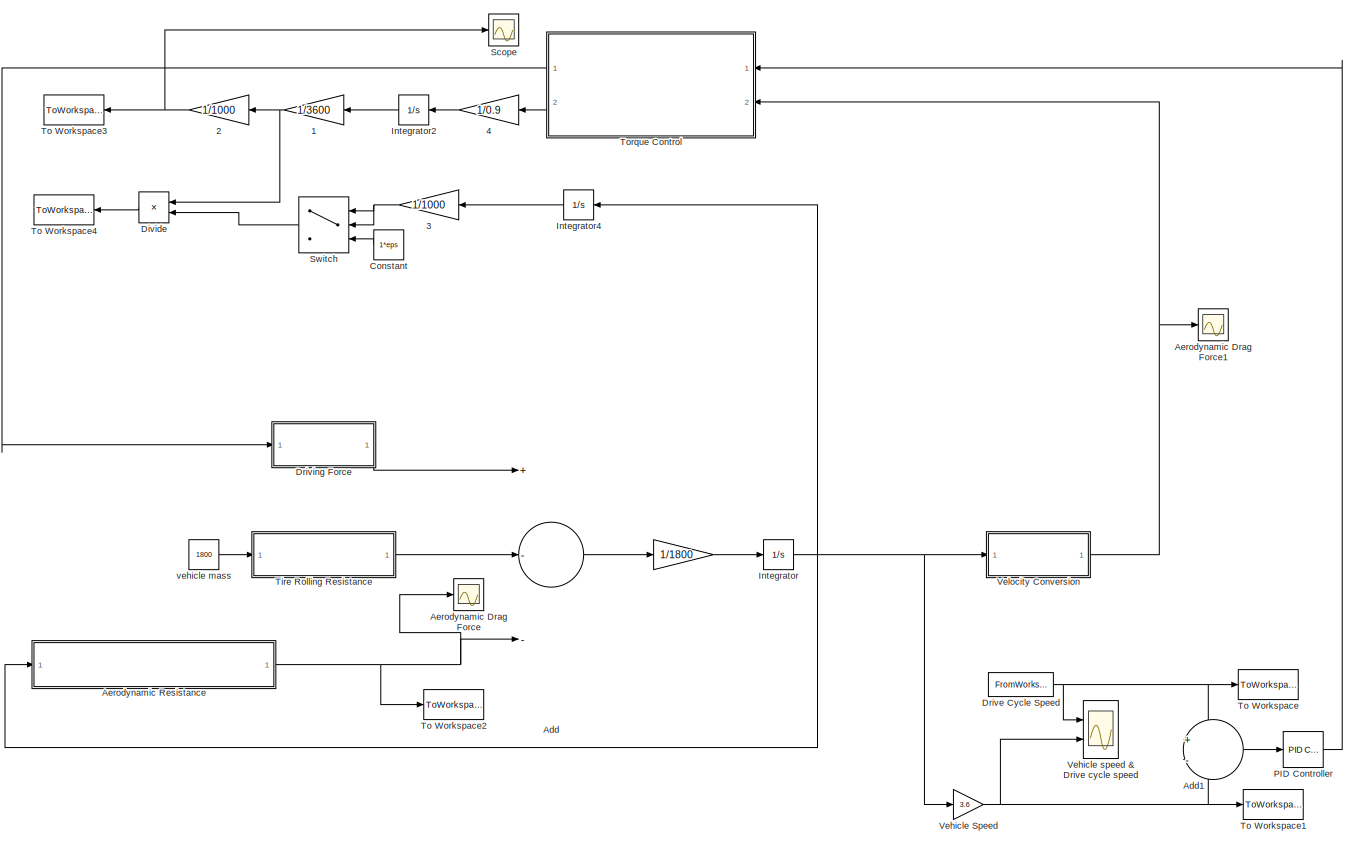
[diagram: root canvas - part 1/1, most of the canvas]
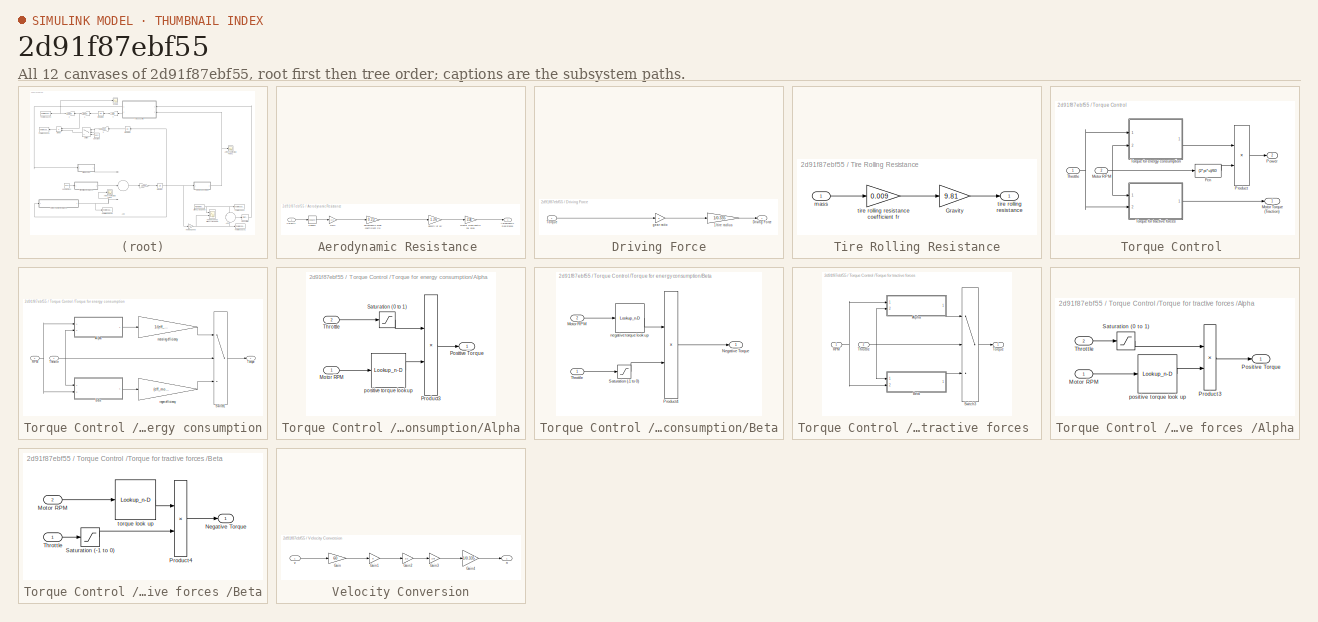
[diagram: thumbnail index - all 12 canvases of the model, root first then tree order]
MODEL slx_2d91f87ebf55
KIND model
CONFIG AbsTol = auto
CONFIG EnableMultiTasking = off
CONFIG FixedStep = 1
CONFIG MaxStep = auto
CONFIG MinStep = auto
CONFIG RelTol = 1e-3
CONFIG SampleTimeConstraint = Unconstrained
CONFIG Solver = FixedStepAuto
CONFIG SolverName = FixedStepAuto
CONFIG StartTime = 1
CONFIG StopTime = 600
BLOCK [Gain]  
  Gain = 1/1800
  OutDataTypeStr = Inherit: Inherit via internal rule
  ParamDataTypeStr = Inherit: Inherit via internal rule
  SaturateOnIntegerOverflow = off
BLOCK [Gain]  1
  Gain = 1/3600
  OutDataTypeStr = Inherit: Inherit via internal rule
  ParamDataTypeStr = Inherit: Inherit via internal rule
  SaturateOnIntegerOverflow = off
BLOCK [Gain]  2
  Gain = 1/1000
  OutDataTypeStr = Inherit: Inherit via internal rule
  ParamDataTypeStr = Inherit: Inherit via internal rule
  SaturateOnIntegerOverflow = off
BLOCK [Gain]  3
  Gain = 1/1000
  OutDataTypeStr = Inherit: Inherit via internal rule
  ParamDataTypeStr = Inherit: Inherit via internal rule
  SaturateOnIntegerOverflow = off
BLOCK [Gain]  4
  Gain = 1/0.9
  OutDataTypeStr = Inherit: Inherit via internal rule
  ParamDataTypeStr = Inherit: Inherit via internal rule
  SaturateOnIntegerOverflow = off
BLOCK [Sum] Add
  InputSameDT = off
  Inputs = +--
  OutDataTypeStr = Inherit: Inherit via internal rule
  Ports = [3, 1]
  SaturateOnIntegerOverflow = off
BLOCK [Sum] Add1
  IconShape = round
  InputSameDT = off
  Inputs = +-
  OutDataTypeStr = Inherit: Inherit via internal rule
  Ports = [2, 1]
  SaturateOnIntegerOverflow = off
BLOCK [Scope] Aerodynamic Drag Force
  Floating = off
  NumInputPorts = 1
  Ports = [1]
  ScopeSpecificationString = Simulink.scopes.TimeScopeBlockCfg('CurrentConfiguration', extmgr.ConfigurationSet(extmgr.Configuration('Core','General UI',true),extmgr.Configuration('Core','Source UI',true),extmgr.Configuration('Sources','WiredSimulink',true,'DataLoggingVariableName','ScopeData3'),extmgr.Configuration('Visuals','Time Domain',true,'SerializedDisplays',{struct('MinYLimReal','-125.99156','MaxYLimReal','1133.92408',...<+1429ch>
BLOCK [Scope] Aerodynamic Drag Force1
  Floating = off
  NumInputPorts = 1
  Ports = [1]
  ScopeSpecificationString = Simulink.scopes.TimeScopeBlockCfg('CurrentConfiguration', extmgr.ConfigurationSet(extmgr.Configuration('Core','General UI',true),extmgr.Configuration('Core','Source UI',true),extmgr.Configuration('Sources','WiredSimulink',true,'DataLoggingVariableName','ScopeData2'),extmgr.Configuration('Visuals','Time Domain',true,'SerializedDisplays',{struct('MinYLimReal','-4737.4046','MaxYLimReal','14341.2755',...<+1427ch>
BLOCK [SubSystem] Aerodynamic Resistance 
  Ports = [1, 1]
  RequestExecContextInheritance = off
BLOCK [Outport] Aerodynamic Resistance /Aerodynamic Resistance
  IconDisplay = Port number
BLOCK [Gain] Aerodynamic Resistance /Frontal cross-sectional area
  Gain = 2.34
  OutDataTypeStr = Inherit: Inherit via internal rule
  ParamDataTypeStr = Inherit: Inherit via internal rule
  SaturateOnIntegerOverflow = off
BLOCK [Gain] Aerodynamic Resistance /Gain
  Gain = 1/2
  OutDataTypeStr = Inherit: Inherit via internal rule
  ParamDataTypeStr = Inherit: Inherit via internal rule
  SaturateOnIntegerOverflow = off
BLOCK [Math] Aerodynamic Resistance /Square
  Operator = square
  Ports = [1, 1]
BLOCK [Inport] Aerodynamic Resistance /Velocity
  IconDisplay = Port number
BLOCK [Gain] Aerodynamic Resistance /aerodynamic drag coefficient Cd
  Gain = 0.23
  OutDataTypeStr = Inherit: Inherit via internal rule
  ParamDataTypeStr = Inherit: Inherit via internal rule
  SaturateOnIntegerOverflow = off
BLOCK [Gain] Aerodynamic Resistance /density of air
  Gain = 1.26
  OutDataTypeStr = Inherit: Inherit via internal rule
  ParamDataTypeStr = Inherit: Inherit via internal rule
  SaturateOnIntegerOverflow = off
BLOCK [Constant] Constant
  Value = 1*eps
BLOCK [Product] Divide
  InputSameDT = off
  Inputs = */
  OutDataTypeStr = Inherit: Inherit via internal rule
  Ports = [2, 1]
  RndMeth = Floor
  SaturateOnIntegerOverflow = off
BLOCK [FromWorkspace] Drive Cycle Speed 
  SampleTime = 0
  VariableName = us06_ts
  ZeroCross = on
BLOCK [SubSystem] Driving Force
  Ports = [1, 1]
  RequestExecContextInheritance = off
BLOCK [Gain] Driving Force/1//tire radius
  Gain = 1/0.335
  OutDataTypeStr = Inherit: Inherit via internal rule
  ParamDataTypeStr = Inherit: Inherit via internal rule
  SaturateOnIntegerOverflow = off
BLOCK [Outport] Driving Force/Driving Force
  IconDisplay = Port number
BLOCK [Inport] Driving Force/Torque
  IconDisplay = Port number
BLOCK [Gain] Driving Force/gear ratio
  Gain = 8
  OutDataTypeStr = Inherit: Inherit via internal rule
  ParamDataTypeStr = Inherit: Inherit via internal rule
  SaturateOnIntegerOverflow = off
BLOCK [Integrator] Integrator
  Ports = [1, 1]
BLOCK [Integrator] Integrator2
  Ports = [1, 1]
BLOCK [Integrator] Integrator4
  Ports = [1, 1]
BLOCK [Reference] PID Controller  REF=simulink/Continuous/PID Controller
  Ports = [1, 1]
  SourceBlock = simulink/Continuous/PID Controller
  SourceProductBaseCode = SL
  SourceProductName = Simulink
  SourceType = PID 1dof
BLOCK [Scope] Scope
  Floating = off
  NumInputPorts = 1
  Ports = [1]
  ScopeSpecificationString = Simulink.scopes.TimeScopeBlockCfg('CurrentConfiguration', extmgr.ConfigurationSet(extmgr.Configuration('Core','General UI',true),extmgr.Configuration('Core','Source UI',true),extmgr.Configuration('Sources','WiredSimulink',true,'DataLoggingVariableName','ScopeData1'),extmgr.Configuration('Visuals','Time Domain',true,'SerializedDisplays',{struct('MinYLimReal','-383.69254','MaxYLimReal','3452.52688',...<+1379ch>
BLOCK [Switch] Switch
  Criteria = u2 > Threshold
  InputSameDT = off
  SaturateOnIntegerOverflow = off
BLOCK [SubSystem] Tire Rolling Resistance
  Ports = [1, 1]
  RequestExecContextInheritance = off
BLOCK [Gain] Tire Rolling Resistance/Gravity
  Gain = 9.81
  OutDataTypeStr = Inherit: Inherit via internal rule
  ParamDataTypeStr = Inherit: Inherit via internal rule
  SaturateOnIntegerOverflow = off
BLOCK [Inport] Tire Rolling Resistance/mass
  IconDisplay = Port number
BLOCK [Outport] Tire Rolling Resistance/tire rolling resistance
  IconDisplay = Port number
BLOCK [Gain] Tire Rolling Resistance/tire rolling resistance coefficient fr
  Gain = 0.009
  OutDataTypeStr = Inherit: Inherit via internal rule
  ParamDataTypeStr = Inherit: Inherit via internal rule
  SaturateOnIntegerOverflow = off
BLOCK [ToWorkspace] To Workspace
  FixptAsFi = on
  MaxDataPoints = inf
  Ports = [1]
  SampleTime = -1
  VariableName = Drivecycle
BLOCK [ToWorkspace] To Workspace1
  FixptAsFi = on
  MaxDataPoints = inf
  Ports = [1]
  SampleTime = -1
  VariableName = Vehicle
BLOCK [ToWorkspace] To Workspace2
  FixptAsFi = on
  MaxDataPoints = inf
  Ports = [1]
  SampleTime = -1
  VariableName = Aero
BLOCK [ToWorkspace] To Workspace3
  FixptAsFi = on
  MaxDataPoints = inf
  Ports = [1]
  SampleTime = -1
  VariableName = e_kWh
BLOCK [ToWorkspace] To Workspace4
  FixptAsFi = on
  MaxDataPoints = inf
  Ports = [1]
  SampleTime = -1
  VariableName = e_kWh_km
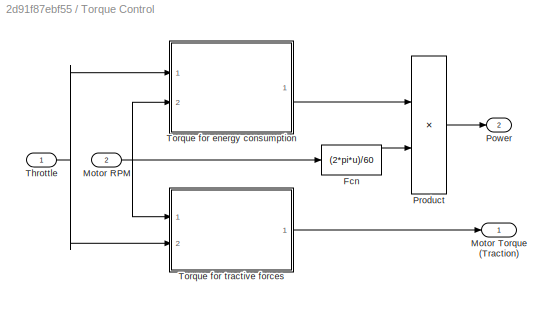
BLOCK [SubSystem] Torque Control 
  Ports = [2, 2]
  RequestExecContextInheritance = off
BLOCK [Fcn] Torque Control /Fcn
  Expr = (2*pi*u)/60
BLOCK [Inport] Torque Control /Motor RPM
  IconDisplay = Port number
  Port = 2
BLOCK [Outport] Torque Control /Motor Torque (Traction) 
  IconDisplay = Port number
  VectorParamsAs1DForOutWhenUnconnected = on
BLOCK [Outport] Torque Control /Power
  IconDisplay = Port number
  Port = 2
  VectorParamsAs1DForOutWhenUnconnected = on
BLOCK [Product] Torque Control /Product
  InputSameDT = off
  OutDataTypeStr = Inherit: Inherit via internal rule
  Ports = [2, 1]
  RndMeth = Floor
  SaturateOnIntegerOverflow = off
BLOCK [Inport] Torque Control /Throttle 
  IconDisplay = Port number
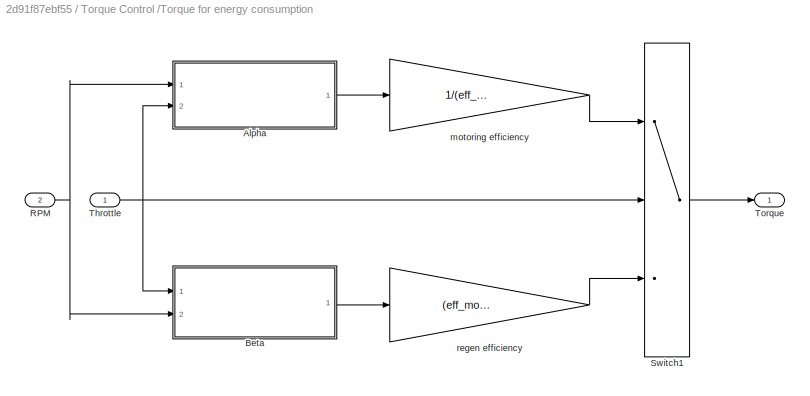
BLOCK [SubSystem] Torque Control /Torque for energy consumption
  Ports = [2, 1]
  RequestExecContextInheritance = off
BLOCK [SubSystem] Torque Control /Torque for energy consumption/Alpha
  Ports = [2, 1]
  RequestExecContextInheritance = off
BLOCK [Inport] Torque Control /Torque for energy consumption/Alpha/Motor RPM
  IconDisplay = Port number
BLOCK [Outport] Torque Control /Torque for energy consumption/Alpha/Positive Torque
  IconDisplay = Port number
  VectorParamsAs1DForOutWhenUnconnected = on
BLOCK [Product] Torque Control /Torque for energy consumption/Alpha/Product3
  InputSameDT = off
  OutDataTypeStr = Inherit: Inherit via internal rule
  Ports = [2, 1]
  SaturateOnIntegerOverflow = off
BLOCK [Saturate] Torque Control /Torque for energy consumption/Alpha/Saturation (0 to 1)
  InputPortMap = u0
  LowerLimit = 0
  Ports = [1, 1]
  UpperLimit = 1
BLOCK [Inport] Torque Control /Torque for energy consumption/Alpha/Throttle
  IconDisplay = Port number
  Port = 2
BLOCK [Lookup_n-D] Torque Control /Torque for energy consumption/Alpha/positive torque look up 
  BreakpointsForDimension1 = EM_RPM
  BreakpointsForDimension2 = alpha
  InternalRulePriority = Speed
  NumberOfTableDimensions = 1
  Ports = [1, 1]
  RndMeth = Simplest
  Table = EM_torque_Nm
BLOCK [SubSystem] Torque Control /Torque for energy consumption/Beta
  Ports = [2, 1]
  RequestExecContextInheritance = off
BLOCK [Inport] Torque Control /Torque for energy consumption/Beta/Motor RPM
  IconDisplay = Port number
  Port = 2
BLOCK [Outport] Torque Control /Torque for energy consumption/Beta/Negative Torque 
  IconDisplay = Port number
  VectorParamsAs1DForOutWhenUnconnected = on
BLOCK [Product] Torque Control /Torque for energy consumption/Beta/Product4
  InputSameDT = off
  OutDataTypeStr = Inherit: Inherit via internal rule
  Ports = [2, 1]
  SaturateOnIntegerOverflow = off
BLOCK [Saturate] Torque Control /Torque for energy consumption/Beta/Saturation (-1 to 0)
  InputPortMap = u0
  LowerLimit = -1
  Ports = [1, 1]
  UpperLimit = 0
BLOCK [Inport] Torque Control /Torque for energy consumption/Beta/Throttle
  IconDisplay = Port number
BLOCK [Lookup_n-D] Torque Control /Torque for energy consumption/Beta/negative torque look up 
  BreakpointsForDimension1 = EM_RPM
  BreakpointsForDimension2 = alpha
  InternalRulePriority = Speed
  NumberOfTableDimensions = 1
  Ports = [1, 1]
  RndMeth = Simplest
  Table = EM_torque_Nm
BLOCK [Inport] Torque Control /Torque for energy consumption/RPM
  IconDisplay = Port number
  Port = 2
BLOCK [Switch] Torque Control /Torque for energy consumption/Switch1
  Criteria = u2 > Threshold
  InputSameDT = off
  SaturateOnIntegerOverflow = off
BLOCK [Inport] Torque Control /Torque for energy consumption/Throttle 
  IconDisplay = Port number
BLOCK [Outport] Torque Control /Torque for energy consumption/Torque 
  IconDisplay = Port number
  VectorParamsAs1DForOutWhenUnconnected = on
BLOCK [Gain] Torque Control /Torque for energy consumption/motoring efficiency
  Gain = 1/(eff_motor*eff_transmission)
  OutDataTypeStr = Inherit: Inherit via internal rule
  ParamDataTypeStr = Inherit: Inherit via internal rule
  SaturateOnIntegerOverflow = off
BLOCK [Gain] Torque Control /Torque for energy consumption/regen efficiency
  Gain = (eff_motor*eff_transmission)
  OutDataTypeStr = Inherit: Inherit via internal rule
  ParamDataTypeStr = Inherit: Inherit via internal rule
  SaturateOnIntegerOverflow = off
BLOCK [SubSystem] Torque Control /Torque for tractive forces 
  Ports = [2, 1]
  RequestExecContextInheritance = off
BLOCK [SubSystem] Torque Control /Torque for tractive forces /Alpha
  Ports = [2, 1]
  RequestExecContextInheritance = off
BLOCK [Inport] Torque Control /Torque for tractive forces /Alpha/Motor RPM
  IconDisplay = Port number
BLOCK [Outport] Torque Control /Torque for tractive forces /Alpha/Positive Torque
  IconDisplay = Port number
  VectorParamsAs1DForOutWhenUnconnected = on
BLOCK [Product] Torque Control /Torque for tractive forces /Alpha/Product3
  InputSameDT = off
  OutDataTypeStr = Inherit: Inherit via internal rule
  Ports = [2, 1]
  SaturateOnIntegerOverflow = off
BLOCK [Saturate] Torque Control /Torque for tractive forces /Alpha/Saturation (0 to 1)
  InputPortMap = u0
  LowerLimit = 0
  Ports = [1, 1]
  UpperLimit = 1
BLOCK [Inport] Torque Control /Torque for tractive forces /Alpha/Throttle
  IconDisplay = Port number
  Port = 2
BLOCK [Lookup_n-D] Torque Control /Torque for tractive forces /Alpha/positive torque look up 
  BreakpointsForDimension1 = EM_RPM
  BreakpointsForDimension2 = alpha
  InternalRulePriority = Speed
  NumberOfTableDimensions = 1
  Ports = [1, 1]
  RndMeth = Simplest
  Table = EM_torque_Nm
BLOCK [SubSystem] Torque Control /Torque for tractive forces /Beta
  Ports = [2, 1]
  RequestExecContextInheritance = off
BLOCK [Inport] Torque Control /Torque for tractive forces /Beta/Motor RPM
  IconDisplay = Port number
  Port = 2
BLOCK [Outport] Torque Control /Torque for tractive forces /Beta/Negative Torque 
  IconDisplay = Port number
  VectorParamsAs1DForOutWhenUnconnected = on
BLOCK [Product] Torque Control /Torque for tractive forces /Beta/Product4
  InputSameDT = off
  OutDataTypeStr = Inherit: Inherit via internal rule
  Ports = [2, 1]
  SaturateOnIntegerOverflow = off
BLOCK [Saturate] Torque Control /Torque for tractive forces /Beta/Saturation (-1 to 0)
  InputPortMap = u0
  LowerLimit = -1
  Ports = [1, 1]
  UpperLimit = 0
BLOCK [Inport] Torque Control /Torque for tractive forces /Beta/Throttle 
  IconDisplay = Port number
BLOCK [Lookup_n-D] Torque Control /Torque for tractive forces /Beta/torque look up 
  BreakpointsForDimension1 = EM_RPM
  BreakpointsForDimension2 = alpha
  InternalRulePriority = Speed
  NumberOfTableDimensions = 1
  Ports = [1, 1]
  RndMeth = Simplest
  Table = EM_torque_Nm
BLOCK [Inport] Torque Control /Torque for tractive forces /RPM
  IconDisplay = Port number
BLOCK [Switch] Torque Control /Torque for tractive forces /Switch3
  Criteria = u2 > Threshold
  InputSameDT = off
  SaturateOnIntegerOverflow = off
BLOCK [Inport] Torque Control /Torque for tractive forces /Throttle
  IconDisplay = Port number
  Port = 2
BLOCK [Outport] Torque Control /Torque for tractive forces /Torque
  IconDisplay = Port number
  VectorParamsAs1DForOutWhenUnconnected = on
BLOCK [Gain] Vehicle Speed
  Gain = 3.6
  OutDataTypeStr = Inherit: Inherit via internal rule
  ParamDataTypeStr = Inherit: Inherit via internal rule
  SaturateOnIntegerOverflow = off
BLOCK [Scope] Vehicle speed & Drive cycle speed
  Floating = off
  NumInputPorts = 2
  Ports = [2]
  ScopeSpecificationString = Simulink.scopes.TimeScopeBlockCfg('CurrentConfiguration', extmgr.ConfigurationSet(extmgr.Configuration('Core','General UI',true),extmgr.Configuration('Core','Source UI',true),extmgr.Configuration('Sources','WiredSimulink',true,'DataLoggingVariableName','ScopeData2'),extmgr.Configuration('Visuals','Time Domain',true,'SerializedDisplays',{struct('MinYLimReal','-74.78705','MaxYLimReal','226.39859','Y...<+1430ch>
BLOCK [SubSystem] Velocity Conversion
  Ports = [1, 1]
  RequestExecContextInheritance = off
BLOCK [Gain] Velocity Conversion/Gain
  Gain = 60
  OutDataTypeStr = Inherit: Inherit via internal rule
  ParamDataTypeStr = Inherit: Inherit via internal rule
  SaturateOnIntegerOverflow = off
BLOCK [Gain] Velocity Conversion/Gain1
  Gain = 8
  OutDataTypeStr = Inherit: Inherit via internal rule
  ParamDataTypeStr = Inherit: Inherit via internal rule
  SaturateOnIntegerOverflow = off
BLOCK [Gain] Velocity Conversion/Gain2
  Gain = 1/2
  OutDataTypeStr = Inherit: Inherit via internal rule
  ParamDataTypeStr = Inherit: Inherit via internal rule
  SaturateOnIntegerOverflow = off
BLOCK [Gain] Velocity Conversion/Gain3
  Gain = 1/pi
  OutDataTypeStr = Inherit: Inherit via internal rule
  ParamDataTypeStr = Inherit: Inherit via internal rule
  SaturateOnIntegerOverflow = off
BLOCK [Gain] Velocity Conversion/Gain4
  Gain = 1/0.335
  OutDataTypeStr = Inherit: Inherit via internal rule
  ParamDataTypeStr = Inherit: Inherit via internal rule
  SaturateOnIntegerOverflow = off
BLOCK [Outport] Velocity Conversion/n
  IconDisplay = Port number
BLOCK [Inport] Velocity Conversion/v
  IconDisplay = Port number
BLOCK [Constant] vehicle mass
  Value = 1800
NET  1:1 ->  2:1, Divide:1
NET  2:1 -> Scope:1, To Workspace3:1
NET  3:1 -> Switch:1, Switch:2
LINE  4:1 -> Integrator2:1
LINE  :1 -> Integrator:1
LINE Add1:1 -> PID Controller:1
LINE Add:1 ->  :1
LINE Aerodynamic Resistance /Frontal cross-sectional area:1 -> Aerodynamic Resistance /Aerodynamic Resistance:1
LINE Aerodynamic Resistance /Gain:1 -> Aerodynamic Resistance /aerodynamic drag coefficient Cd:1
LINE Aerodynamic Resistance /Square:1 -> Aerodynamic Resistance /Gain:1
LINE Aerodynamic Resistance /Velocity:1 -> Aerodynamic Resistance /Square:1
LINE Aerodynamic Resistance /aerodynamic drag coefficient Cd:1 -> Aerodynamic Resistance /density of air:1
LINE Aerodynamic Resistance /density of air:1 -> Aerodynamic Resistance /Frontal cross-sectional area:1
NET Aerodynamic Resistance :1 -> Add:3, Aerodynamic Drag Force:1, To Workspace2:1
LINE Constant:1 -> Switch:3
LINE Divide:1 -> To Workspace4:1
NET Drive Cycle Speed :1 -> Add1:1, To Workspace:1, Vehicle speed & Drive cycle speed:1
LINE Driving Force/1//tire radius:1 -> Driving Force/Driving Force:1
LINE Driving Force/Torque:1 -> Driving Force/gear ratio:1
LINE Driving Force/gear ratio:1 -> Driving Force/1//tire radius:1
LINE Driving Force:1 -> Add:1
LINE Integrator2:1 ->  1:1
LINE Integrator4:1 ->  3:1
NET Integrator:1 -> Aerodynamic Resistance :1, Integrator4:1, Vehicle Speed:1, Velocity Conversion:1
LINE PID Controller:1 -> Torque Control :1
LINE Switch:1 -> Divide:2
LINE Tire Rolling Resistance/Gravity:1 -> Tire Rolling Resistance/tire rolling resistance:1
LINE Tire Rolling Resistance/mass:1 -> Tire Rolling Resistance/tire rolling resistance coefficient fr:1
LINE Tire Rolling Resistance/tire rolling resistance coefficient fr:1 -> Tire Rolling Resistance/Gravity:1
LINE Tire Rolling Resistance:1 -> Add:2
LINE Torque Control /Fcn:1 -> Torque Control /Product:2
NET Torque Control /Motor RPM:1 -> Torque Control /Fcn:1, Torque Control /Torque for energy consumption:2, Torque Control /Torque for tractive forces :1
LINE Torque Control /Product:1 -> Torque Control /Power:1
NET Torque Control /Throttle :1 -> Torque Control /Torque for energy consumption:1, Torque Control /Torque for tractive forces :2
LINE Torque Control /Torque for energy consumption/Alpha/Motor RPM:1 -> Torque Control /Torque for energy consumption/Alpha/positive torque look up :1
LINE Torque Control /Torque for energy consumption/Alpha/Product3:1 -> Torque Control /Torque for energy consumption/Alpha/Positive Torque:1
LINE Torque Control /Torque for energy consumption/Alpha/Saturation (0 to 1):1 -> Torque Control /Torque for energy consumption/Alpha/Product3:1
LINE Torque Control /Torque for energy consumption/Alpha/Throttle:1 -> Torque Control /Torque for energy consumption/Alpha/Saturation (0 to 1):1
LINE Torque Control /Torque for energy consumption/Alpha/positive torque look up :1 -> Torque Control /Torque for energy consumption/Alpha/Product3:2
LINE Torque Control /Torque for energy consumption/Alpha:1 -> Torque Control /Torque for energy consumption/motoring efficiency:1
LINE Torque Control /Torque for energy consumption/Beta/Motor RPM:1 -> Torque Control /Torque for energy consumption/Beta/negative torque look up :1
LINE Torque Control /Torque for energy consumption/Beta/Product4:1 -> Torque Control /Torque for energy consumption/Beta/Negative Torque :1
LINE Torque Control /Torque for energy consumption/Beta/Saturation (-1 to 0):1 -> Torque Control /Torque for energy consumption/Beta/Product4:2
LINE Torque Control /Torque for energy consumption/Beta/Throttle:1 -> Torque Control /Torque for energy consumption/Beta/Saturation (-1 to 0):1
LINE Torque Control /Torque for energy consumption/Beta/negative torque look up :1 -> Torque Control /Torque for energy consumption/Beta/Product4:1
LINE Torque Control /Torque for energy consumption/Beta:1 -> Torque Control /Torque for energy consumption/regen efficiency:1
NET Torque Control /Torque for energy consumption/RPM:1 -> Torque Control /Torque for energy consumption/Alpha:1, Torque Control /Torque for energy consumption/Beta:2
LINE Torque Control /Torque for energy consumption/Switch1:1 -> Torque Control /Torque for energy consumption/Torque :1
NET Torque Control /Torque for energy consumption/Throttle :1 -> Torque Control /Torque for energy consumption/Alpha:2, Torque Control /Torque for energy consumption/Beta:1, Torque Control /Torque for energy consumption/Switch1:2
LINE Torque Control /Torque for energy consumption/motoring efficiency:1 -> Torque Control /Torque for energy consumption/Switch1:1
LINE Torque Control /Torque for energy consumption/regen efficiency:1 -> Torque Control /Torque for energy consumption/Switch1:3
LINE Torque Control /Torque for energy consumption:1 -> Torque Control /Product:1
LINE Torque Control /Torque for tractive forces /Alpha/Motor RPM:1 -> Torque Control /Torque for tractive forces /Alpha/positive torque look up :1
LINE Torque Control /Torque for tractive forces /Alpha/Product3:1 -> Torque Control /Torque for tractive forces /Alpha/Positive Torque:1
LINE Torque Control /Torque for tractive forces /Alpha/Saturation (0 to 1):1 -> Torque Control /Torque for tractive forces /Alpha/Product3:1
LINE Torque Control /Torque for tractive forces /Alpha/Throttle:1 -> Torque Control /Torque for tractive forces /Alpha/Saturation (0 to 1):1
LINE Torque Control /Torque for tractive forces /Alpha/positive torque look up :1 -> Torque Control /Torque for tractive forces /Alpha/Product3:2
LINE Torque Control /Torque for tractive forces /Alpha:1 -> Torque Control /Torque for tractive forces /Switch3:1
LINE Torque Control /Torque for tractive forces /Beta/Motor RPM:1 -> Torque Control /Torque for tractive forces /Beta/torque look up :1
LINE Torque Control /Torque for tractive forces /Beta/Product4:1 -> Torque Control /Torque for tractive forces /Beta/Negative Torque :1
LINE Torque Control /Torque for tractive forces /Beta/Saturation (-1 to 0):1 -> Torque Control /Torque for tractive forces /Beta/Product4:2
LINE Torque Control /Torque for tractive forces /Beta/Throttle :1 -> Torque Control /Torque for tractive forces /Beta/Saturation (-1 to 0):1
LINE Torque Control /Torque for tractive forces /Beta/torque look up :1 -> Torque Control /Torque for tractive forces /Beta/Product4:1
LINE Torque Control /Torque for tractive forces /Beta:1 -> Torque Control /Torque for tractive forces /Switch3:3
NET Torque Control /Torque for tractive forces /RPM:1 -> Torque Control /Torque for tractive forces /Alpha:1, Torque Control /Torque for tractive forces /Beta:2
LINE Torque Control /Torque for tractive forces /Switch3:1 -> Torque Control /Torque for tractive forces /Torque:1
NET Torque Control /Torque for tractive forces /Throttle:1 -> Torque Control /Torque for tractive forces /Alpha:2, Torque Control /Torque for tractive forces /Beta:1, Torque Control /Torque for tractive forces /Switch3:2
LINE Torque Control /Torque for tractive forces :1 -> Torque Control /Motor Torque (Traction) :1
LINE Torque Control :1 -> Driving Force:1
LINE Torque Control :2 ->  4:1
NET Vehicle Speed:1 -> Add1:2, To Workspace1:1, Vehicle speed & Drive cycle speed:2
LINE Velocity Conversion/Gain1:1 -> Velocity Conversion/Gain2:1
LINE Velocity Conversion/Gain2:1 -> Velocity Conversion/Gain3:1
LINE Velocity Conversion/Gain3:1 -> Velocity Conversion/Gain4:1
LINE Velocity Conversion/Gain4:1 -> Velocity Conversion/n:1
LINE Velocity Conversion/Gain:1 -> Velocity Conversion/Gain1:1
LINE Velocity Conversion/v:1 -> Velocity Conversion/Gain:1
NET Velocity Conversion:1 -> Aerodynamic Drag Force1:1, Torque Control :2
LINE vehicle mass:1 -> Tire Rolling Resistance:1
note: NET lines group one-source signal fan-out (src -> all destinations, sorted); 1:1 wires keep LINE
